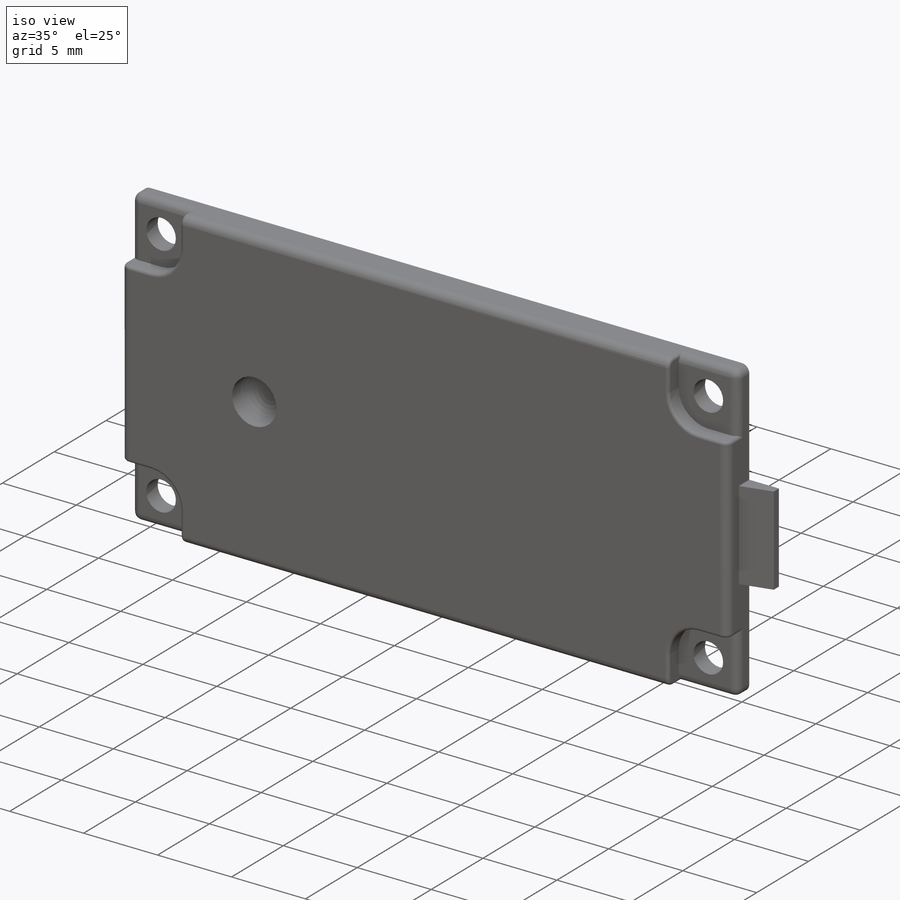
[diagram: iso view]
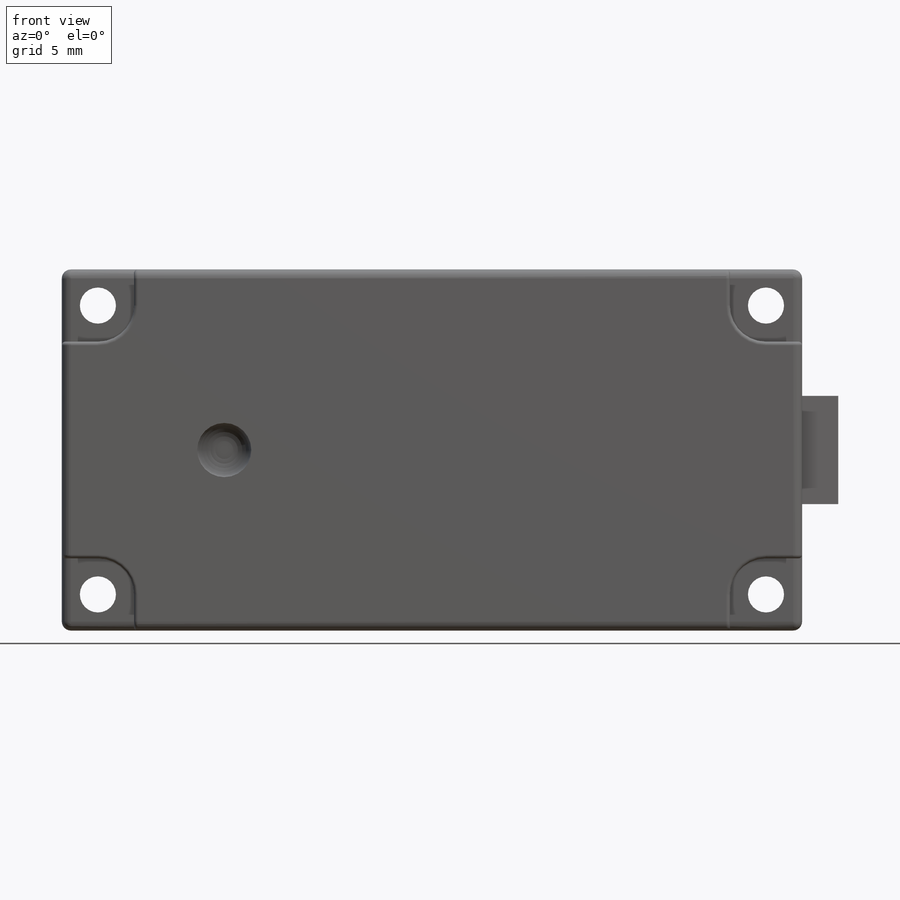
[diagram: front view]
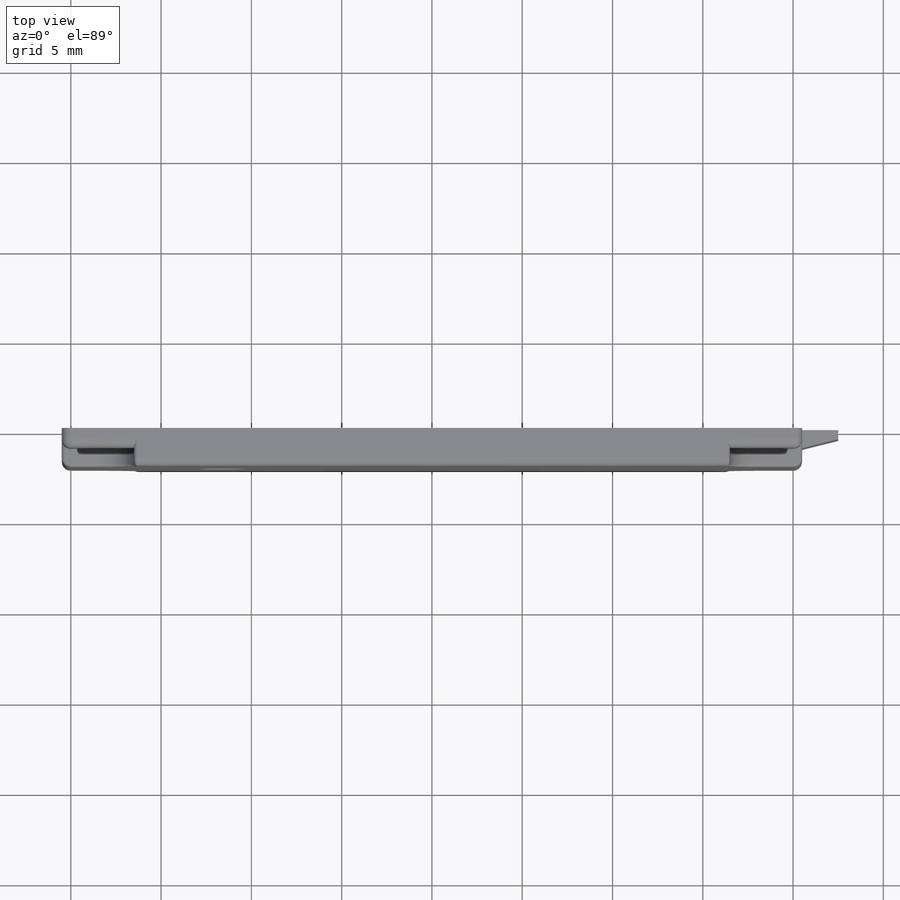
[diagram: top view]
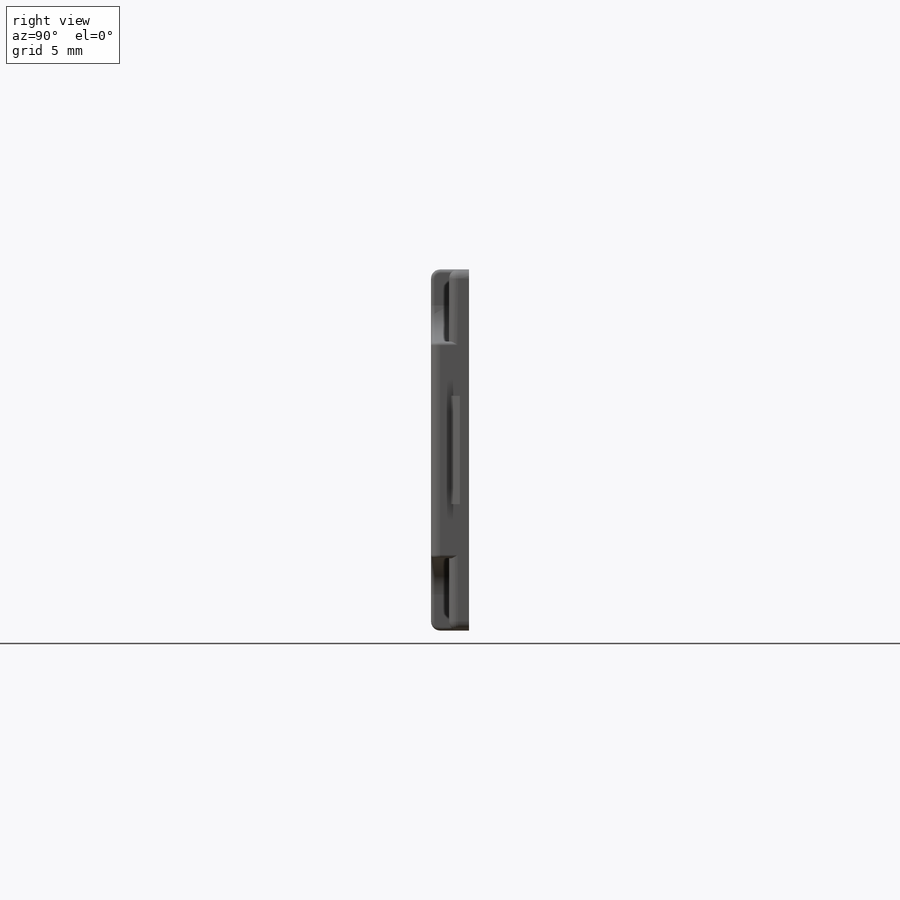
[diagram: right view]
SOLIDWORKS PART (.sldprt)
format: sldprt  version: not decoded by parser v0  size: 895,488 bytes
history: native  units: mm
features: sketch x4, fillet x3, extrude x2, cut_extrude x2, material x1 (+15 scaffold rows collapsed)
feature tree (27):
  scaffold x15  (default folders/planes/origin — collapsed)
  material  "Material <not specified>"
  sketch  "Sketch1"  dims[D3=2.0mm D1=20.0mm D2=41.0mm D4=~2.001904mm D5=2.0mm]
  extrude  "Extrude1"  Depth=2.1mm
  sketch  "Sketch2"  dims[D3=2.0mm D4=2.0mm D1=4.0mm D2=4.0mm]
  cut_extrude  "Cut-Extrude1"  Depth=1mm
  fillet  "Fillet1"  Radius=0.5mm
  fillet  "Fillet2"  Radius=0.2mm
  sketch  "Sketch3"  dims[D1=3.0mm D2=9.0mm D3=10.0mm]
  cut_extrude  "Cut-Extrude2"  Depth=1.5mm
  fillet  "Fillet3"  Radius=1mm
  sketch  "Sketch4"  dims[D1=2.0mm D2=1.0mm D3=0.5mm]
  extrude  "Extrude2"  Depth=3mm
decode coverage: 11 of 11 modeling features carry decoded parameters
note: ~ marks probable driven/reference dimensions
note: suppression state not decoded; provenance and decode notes live in map.json
